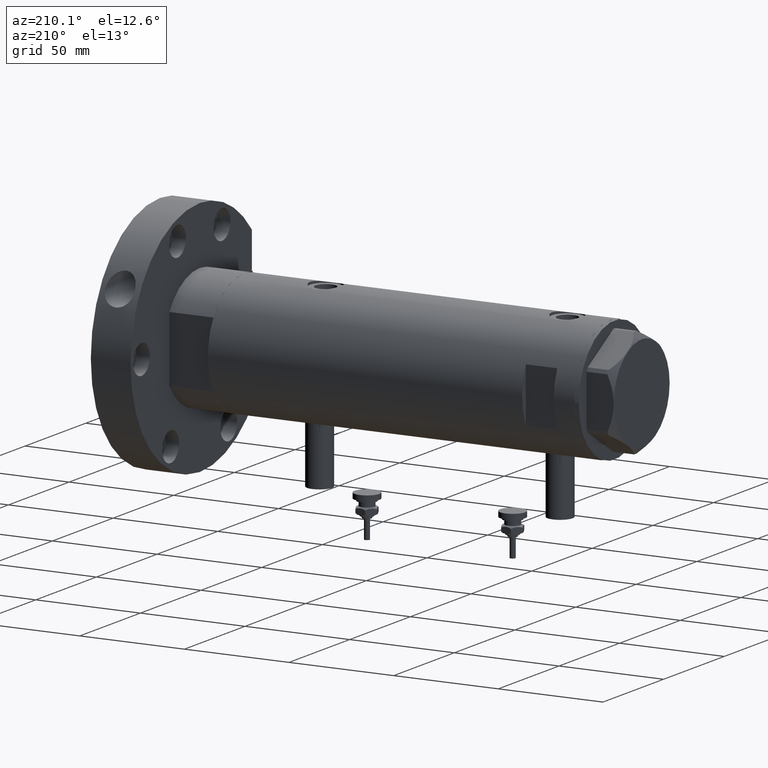
[diagram: clean part render]
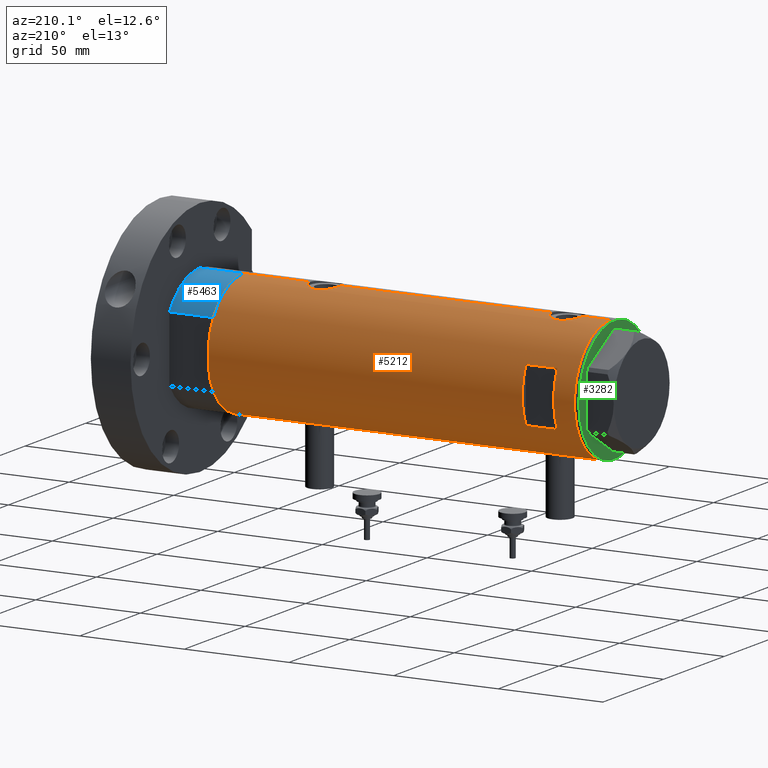
[diagram: same view with three faces highlighted in distinct colors, each labeled with its STEP entity id]
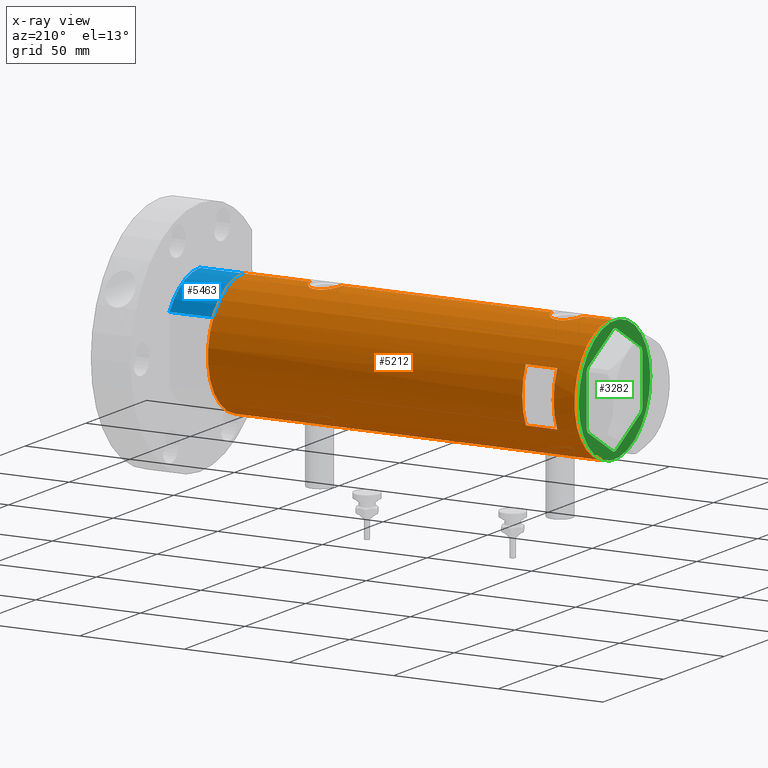
[diagram: x-ray of the same camera — body ghosted, the three highlighted faces saturated]
A machine part, auxiliary view with three faces highlighted in distinct colors.
The next image is the same camera in x-ray (body ghosted, the three faces saturated) — at least one of them is partly hidden behind the body in this view.
Their STEP definitions:

[orange] entity #5212 — the highlighted cylindrical surface (partial cylindrical patch) has radius 29.5 mm, axis along (-1, -0, 0).
#31 = LINE ( 'NONE', #6536, #6282 ) ;
#45 = EDGE_CURVE ( 'NONE', #2652, #2340, #2033, .T. ) ;
#70 = CARTESIAN_POINT ( 'NONE',  ( 12.96148139681573319, 26.49999999999998934, 77.60000000000002274 ) ) ;
#72 = CYLINDRICAL_SURFACE ( 'NONE', #5810, 29.50000000000000355 ) ;
#84 = VERTEX_POINT ( 'NONE', #70 ) ;
#100 = DIRECTION ( 'NONE',  ( 0.000000000000000000, 0.000000000000000000, 1.000000000000000000 ) ) ;
#122 = CARTESIAN_POINT ( 'NONE',  ( -28.87539346372184212, 6.038655803256923527, -49.67547335916925988 ) ) ;
#163 = CARTESIAN_POINT ( 'NONE',  ( 29.26131531204081426, 3.767377415172554311, -41.89654697428871799 ) ) ;
#166 = CARTESIAN_POINT ( 'NONE',  ( -12.96148139681574030, 26.50000000000000355, 62.60000000000001563 ) ) ;
#195 = CARTESIAN_POINT ( 'NONE',  ( 29.40387556522357571, 2.422597899785629227, -41.28513960230168323 ) ) ;
#232 = CARTESIAN_POINT ( 'NONE',  ( 29.49693976195336020, 0.4910732786937798133, -40.91200905704376112 ) ) ;
#258 = VERTEX_POINT ( 'NONE', #2034 ) ;
#271 = CARTESIAN_POINT ( 'NONE',  ( -29.33500454540941149, 3.134363790739244759, -45.87737865536319504 ) ) ;
#279 = CARTESIAN_POINT ( 'NONE',  ( 29.50000000000000355, -8.867894669064240341E-21, 74.59999999999999432 ) ) ;
#310 = ORIENTED_EDGE ( 'NONE', *, *, #7287, .F. ) ;
#316 = CARTESIAN_POINT ( 'NONE',  ( -28.99931529802529795, 5.412890550536865852, -54.43129199055216816 ) ) ;
#325 = EDGE_CURVE ( 'NONE', #4663, #3112, #1584, .T. ) ;
#352 = CARTESIAN_POINT ( 'NONE',  ( -29.38727827406290416, 2.583363936682823603, -56.99478026128668517 ) ) ;
#440 = CARTESIAN_POINT ( 'NONE',  ( -29.01875661852155019, 5.308007315944003324, -54.60588370000890279 ) ) ;
#518 = AXIS2_PLACEMENT_3D ( 'NONE', #4721, #4784, #4822 ) ;
#541 = CIRCLE ( 'NONE', #4809, 29.50000000000000355 ) ;
#566 = CARTESIAN_POINT ( 'NONE',  ( -29.48289442777306846, 1.024392307325223905, 57.43111777471300883 ) ) ;
#569 = CARTESIAN_POINT ( 'NONE',  ( 29.48742029994219038, 0.9867701249543437969, -55.85094507494218163 ) ) ;
#576 = CARTESIAN_POINT ( 'NONE',  ( 28.54350045195475971, 7.451747857568897793, 66.11733997124500206 ) ) ;
#579 = DIRECTION ( 'NONE',  ( 0.000000000000000000, 1.000000000000000000, -4.704334850106595203E-15 ) ) ;
#596 = CARTESIAN_POINT ( 'NONE',  ( -29.31451746246149881, 3.307268797680012806, 58.29285158014997137 ) ) ;
#612 = DIRECTION ( 'NONE',  ( 0.000000000000000000, 0.000000000000000000, 1.000000000000000000 ) ) ;
#644 = CARTESIAN_POINT ( 'NONE',  ( 29.43913092143246146, 1.954882548385545649, 74.35749234733351898 ) ) ;
#680 = CARTESIAN_POINT ( 'NONE',  ( 29.50000000000000355, -2.136503572369537054E-15, 59.59999999999999432 ) ) ;
#699 = CARTESIAN_POINT ( 'NONE',  ( -29.50000000000000355, -1.989795151372050188E-15, -45.04999999999999005 ) ) ;
#711 = CARTESIAN_POINT ( 'NONE',  ( 28.86328010881651451, 6.097564286278104539, 71.47368290922693745 ) ) ;
#734 = CARTESIAN_POINT ( 'NONE',  ( -28.83925158138407596, 6.209208576703542981, -52.12198382868806590 ) ) ;
#740 = CARTESIAN_POINT ( 'NONE',  ( 28.72066933684370227, 6.738715173607846332, -51.72836955953554394 ) ) ;
#776 = VECTOR ( 'NONE', #4044, 1000.000000000000000 ) ;
#780 = CARTESIAN_POINT ( 'NONE',  ( 29.31521205951408859, 3.327945423969223881, -41.66093490772912133 ) ) ;
#814 = CARTESIAN_POINT ( 'NONE',  ( 28.62953349941190240, 7.116010646391488947, -45.98020539076898672 ) ) ;
#907 = AXIS2_PLACEMENT_3D ( 'NONE', #5692, #1610, #3959 ) ;
#937 = ORIENTED_EDGE ( 'NONE', *, *, #1818, .T. ) ;
#981 = CARTESIAN_POINT ( 'NONE',  ( -29.49128627113591605, 0.8212788586050359108, 69.80923124908871102 ) ) ;
#1041 = CARTESIAN_POINT ( 'NONE',  ( 28.80468126786726302, 6.368639251981137228, 71.06860510682068366 ) ) ;
#1149 = CARTESIAN_POINT ( 'NONE',  ( 29.45150476095192360, 1.707859807438202315, 59.79292881343939570 ) ) ;
#1208 = CIRCLE ( 'NONE', #3553, 29.50000000000000355 ) ;
#1236 = EDGE_CURVE ( 'NONE', #1693, #1789, #1208, .T. ) ;
#1287 = CARTESIAN_POINT ( 'NONE',  ( 28.89369475765812112, 5.952264974793427754, 71.66950516186246034 ) ) ;
#1306 = CARTESIAN_POINT ( 'NONE',  ( -29.25454443288369433, 3.812919888526644652, -46.33102620819088457 ) ) ;
#1322 = CARTESIAN_POINT ( 'NONE',  ( -28.96085629491409819, 5.616414220648535682, 66.37199639590009781 ) ) ;
#1347 = CARTESIAN_POINT ( 'NONE',  ( 29.31463363472445849, 3.333180401682678262, -55.13656844683045222 ) ) ;
#1349 = DIRECTION ( 'NONE',  ( 0.000000000000000000, 0.000000000000000000, 1.000000000000000000 ) ) ;
#1371 = CARTESIAN_POINT ( 'NONE',  ( -29.50000000000000355, -3.685106651658548747E-16, 69.84999999999999432 ) ) ;
#1413 = LINE ( 'NONE', #7277, #1755 ) ;
#1417 = ORIENTED_EDGE ( 'NONE', *, *, #4049, .T. ) ;
#1424 = CARTESIAN_POINT ( 'NONE',  ( -29.50000000000000711, 0.4142160563134685836, -45.04999999999999716 ) ) ;
#1426 = EDGE_CURVE ( 'NONE', #5982, #6201, #1927, .T. ) ;
#1430 = CARTESIAN_POINT ( 'NONE',  ( 28.69800960089390074, 6.832546664705480666, -45.29724969708693294 ) ) ;
#1458 = ORIENTED_EDGE ( 'NONE', *, *, #1426, .F. ) ;
#1461 = CARTESIAN_POINT ( 'NONE',  ( -28.99817753551065280, 5.423057650933445828, -48.16603848537405952 ) ) ;
#1490 = ORIENTED_EDGE ( 'NONE', *, *, #5165, .T. ) ;
#1561 = CARTESIAN_POINT ( 'NONE',  ( 29.50000000000000355, -8.867894669064240341E-21, -40.89999999999999858 ) ) ;
#1573 = CARTESIAN_POINT ( 'NONE',  ( 12.96148139681573319, 26.49999999999999645, -87.59999999999999432 ) ) ;
#1584 = LINE ( 'NONE', #2749, #4640 ) ;
#1590 = CARTESIAN_POINT ( 'NONE',  ( -29.45614208737133310, 1.620034288692375535, 69.63988643911609699 ) ) ;
#1602 = ORIENTED_EDGE ( 'NONE', *, *, #3594, .F. ) ;
#1606 = CARTESIAN_POINT ( 'NONE',  ( 28.72322018454531189, 6.726124749058830510, 70.42706852850997734 ) ) ;
#1610 = DIRECTION ( 'NONE',  ( 0.000000000000000000, 0.000000000000000000, 1.000000000000000000 ) ) ;
#1617 = CARTESIAN_POINT ( 'NONE',  ( -29.31451746246149526, 3.307268797680013694, -56.60714841985004142 ) ) ;
#1628 = CARTESIAN_POINT ( 'NONE',  ( -28.83035796536222861, 6.249836767212677557, 64.01143494622724006 ) ) ;
#1648 = DIRECTION ( 'NONE',  ( -0.000000000000000000, -0.000000000000000000, -1.000000000000000000 ) ) ;
#1663 = CARTESIAN_POINT ( 'NONE',  ( -29.43341305963175003, 2.016871341298210663, 57.67025331001193678 ) ) ;
#1676 = ORIENTED_EDGE ( 'NONE', *, *, #3703, .F. ) ;
#1693 = VERTEX_POINT ( 'NONE', #1706 ) ;
#1698 = CARTESIAN_POINT ( 'NONE',  ( -29.49787850362430319, 0.4089683628077612210, 57.35998973562983849 ) ) ;
#1706 = CARTESIAN_POINT ( 'NONE',  ( 12.96148139681571898, 26.50000000000000355, 62.60000000000001563 ) ) ;
#1714 = CARTESIAN_POINT ( 'NONE',  ( 28.77473834757382321, 6.507156404236264180, 63.33837315939705093 ) ) ;
#1737 = CARTESIAN_POINT ( 'NONE',  ( -28.99931529802531927, 5.412890550536861412, 60.46870800944782331 ) ) ;
#1755 = VECTOR ( 'NONE', #4406, 1000.000000000000000 ) ;
#1789 = VERTEX_POINT ( 'NONE', #166 ) ;
#1818 = EDGE_CURVE ( 'NONE', #7356, #3269, #7219, .T. ) ;
#1831 = VERTEX_POINT ( 'NONE', #6074 ) ;
#1849 = CARTESIAN_POINT ( 'NONE',  ( 29.40387556522357571, 2.422597899785625231, 74.21486039769831677 ) ) ;
#1856 = DIRECTION ( 'NONE',  ( 0.000000000000000000, 0.000000000000000000, 1.000000000000000000 ) ) ;
#1873 = CARTESIAN_POINT ( 'NONE',  ( -28.83035796536222861, 6.249836767212684663, -50.88856505377280115 ) ) ;
#1879 = CARTESIAN_POINT ( 'NONE',  ( 29.40165444879503909, 2.418426732012822100, -55.50367056434786406 ) ) ;
#1891 = CARTESIAN_POINT ( 'NONE',  ( -28.99817753551064925, 5.423057650933436058, 66.73396151462593195 ) ) ;
#1910 = CARTESIAN_POINT ( 'NONE',  ( -28.90008889585328333, 5.919338933253951218, -49.28359792941950701 ) ) ;
#1914 = CARTESIAN_POINT ( 'NONE',  ( 28.77649569280673703, 6.494415104660911986, -44.64065011183377152 ) ) ;
#1927 = LINE ( 'NONE', #4273, #6596 ) ;
#2033 = B_SPLINE_CURVE_WITH_KNOTS ( 'NONE', 3,
 ( #5101, #2808, #3952, #1149, #5253, #7476, #2263, #4636, #3495, #3381, #5221, #6365, #6942, #6971, #4028, #1714, #4565, #4066, #2180, #6398, #5836, #576, #3607, #6253, #3340, #5688, #7438, #6867, #1606, #6299, #1041, #711, #1287, #2990, #5903, #2948, #4778, #7119, #2370, #1849, #644, #2435, #4744, #5965, #6681, #279 ),
 .UNSPECIFIED., .F., .F.,
 ( 4, 2, 2, 2, 2, 2, 2, 2, 2, 2, 2, 2, 2, 2, 2, 2, 2, 2, 2, 2, 2, 2, 4 ),
 ( 2.075019889373263572E-18, 0.001471587963626213007, 0.002207381945439318427, 0.002943175927252423846, 0.004414763890878631650, 0.005150557872691736636, 0.005886351854504842489, 0.007357939818131036848, 0.008829527781757228605, 0.009565321763570345734, 0.01030111574538346113, 0.01177270370900965375, 0.01324429167263584638, 0.01471587963626204074, 0.01545167361807513358, 0.01618746759988822989, 0.01692326158170132794, 0.01765905556351441905, 0.01913064352714058391, 0.02060223149076674184, 0.02207381945439290671, 0.02280961343620598394, 0.02354540741801906811 ),
 .UNSPECIFIED. ) ;
#2034 = CARTESIAN_POINT ( 'NONE',  ( -29.50000000000000355, 3.612708057484692393E-15, -87.59999999999999432 ) ) ;
#2035 = CARTESIAN_POINT ( 'NONE',  ( 29.38138226830144006, 2.652609128011935269, -55.41954601959671578 ) ) ;
#2081 = CARTESIAN_POINT ( 'NONE',  ( 29.50000000000000355, -8.867894669064240341E-21, 74.59999999999999432 ) ) ;
#2154 = CARTESIAN_POINT ( 'NONE',  ( 29.50000000000000355, -1.363453657738827866E-15, -55.89999999999999858 ) ) ;
#2180 = CARTESIAN_POINT ( 'NONE',  ( 28.63233008736634133, 7.102474189478613198, 64.67814868761114155 ) ) ;
#2194 = CARTESIAN_POINT ( 'NONE',  ( -29.43341305963175714, 2.016871341298211551, -57.22974668998805470 ) ) ;
#2206 = CARTESIAN_POINT ( 'NONE',  ( -29.49999999999999645, 0.2042768310961489142, 57.34999999999998010 ) ) ;
#2263 = CARTESIAN_POINT ( 'NONE',  ( 29.38138226830143651, 2.652609128011935713, 60.08045398040327001 ) ) ;
#2302 = LINE ( 'NONE', #1573, #6917 ) ;
#2309 = CARTESIAN_POINT ( 'NONE',  ( 29.50000000000000355, 0.000000000000000000, -87.59999999999999432 ) ) ;
#2332 = FACE_OUTER_BOUND ( 'NONE', #7077, .T. ) ;
#2340 = VERTEX_POINT ( 'NONE', #2081 ) ;
#2354 = CARTESIAN_POINT ( 'NONE',  ( -28.83925158138408307, 6.209208576703538540, 62.77801617131193979 ) ) ;
#2370 = CARTESIAN_POINT ( 'NONE',  ( 29.31521205951408504, 3.327945423969213223, 73.83906509227089998 ) ) ;
#2435 = CARTESIAN_POINT ( 'NONE',  ( 29.47533087885488712, 1.230190383163952239, 74.50252131767059893 ) ) ;
#2455 = CARTESIAN_POINT ( 'NONE',  ( -28.86473101544359210, 6.089252369705496548, -49.87667050833969284 ) ) ;
#2461 = CARTESIAN_POINT ( 'NONE',  ( 28.54372006395177763, 7.450900983269891142, -47.41234264364084794 ) ) ;
#2494 = CARTESIAN_POINT ( 'NONE',  ( -28.89816269917384162, 5.930588606439753718, -53.31470315542169658 ) ) ;
#2533 = CARTESIAN_POINT ( 'NONE',  ( 29.14546206473282197, 4.578181670952601756, -42.43943908396708764 ) ) ;
#2604 = CARTESIAN_POINT ( 'NONE',  ( -29.50000000000000355, 3.612708057484692393E-15, 87.59999999999999432 ) ) ;
#2621 = CARTESIAN_POINT ( 'NONE',  ( 28.59637095282950625, 7.245897747848926151, -50.35127374277608681 ) ) ;
#2625 = CARTESIAN_POINT ( 'NONE',  ( -29.50000000000000355, -3.685106651658548747E-16, 69.84999999999999432 ) ) ;
#2652 = VERTEX_POINT ( 'NONE', #680 ) ;
#2742 = CARTESIAN_POINT ( 'NONE',  ( -29.12318177724206691, 4.709191267490247412, -55.42971050241654751 ) ) ;
#2749 = CARTESIAN_POINT ( 'NONE',  ( -29.50000000000000355, 3.612708057484692393E-15, -87.59999999999999432 ) ) ;
#2787 = CARTESIAN_POINT ( 'NONE',  ( -29.37021410611214378, 2.770135525807589261, -56.90634069022830488 ) ) ;
#2808 = CARTESIAN_POINT ( 'NONE',  ( 29.50000000000000711, 0.4977435627019807241, 59.60000000000000853 ) ) ;
#2821 = CARTESIAN_POINT ( 'NONE',  ( -29.49787850362430675, 0.4089683628077651623, -57.54001026437015298 ) ) ;
#2869 = CARTESIAN_POINT ( 'NONE',  ( -29.25435602127558354, 3.814249285079249319, 58.63216270466007529 ) ) ;
#2873 = B_SPLINE_CURVE_WITH_KNOTS ( 'NONE', 3,
 ( #6963, #3484, #569, #3767, #6072, #1879, #2035, #1347, #3044, #3124, #5459, #6110, #6599, #6561, #5495, #3656, #740, #7180, #4875, #2621, #3732, #7255, #6640, #6682, #2461, #3198, #814, #1430, #4381, #1914, #3155, #4342, #3081, #7217, #6033, #3689, #2533, #163, #780, #195, #5423, #5540, #4262, #232, #5958, #7149 ),
 .UNSPECIFIED., .F., .F.,
 ( 4, 2, 2, 2, 2, 2, 2, 2, 2, 2, 2, 2, 2, 2, 2, 2, 2, 2, 2, 2, 2, 2, 4 ),
 ( 1.324216582005999085E-18, 0.001471587963626213007, 0.002207381945439318427, 0.002943175927252423846, 0.004414763890878634252, 0.005150557872691738370, 0.005886351854504841621, 0.007357939818131030776, 0.008829527781757219931, 0.009565321763570316244, 0.01030111574538341256, 0.01177270370900960171, 0.01324429167263579260, 0.01471587963626198176, 0.01545167361807507807, 0.01618746759988817091, 0.01692326158170126896, 0.01765905556351436007, 0.01913064352714053881, 0.02060223149076671756, 0.02207381945439289284, 0.02280961343620598047, 0.02354540741801906811 ),
 .UNSPECIFIED. ) ;
#2905 = CARTESIAN_POINT ( 'NONE',  ( -29.48933702067640539, 0.8192029158410146783, 57.40049277733301381 ) ) ;
#2948 = CARTESIAN_POINT ( 'NONE',  ( 29.08308069045667565, 4.954707331652127955, 72.75173628376771262 ) ) ;
#2949 = DIRECTION ( 'NONE',  ( 1.000000000000000000, 0.000000000000000000, 0.000000000000000000 ) ) ;
#2965 = VECTOR ( 'NONE', #1856, 1000.000000000000000 ) ;
#2990 = CARTESIAN_POINT ( 'NONE',  ( 28.95590528945748687, 5.641861744747097340, 72.04764911928884885 ) ) ;
#3037 = CARTESIAN_POINT ( 'NONE',  ( -28.96085629491409108, 5.616414220648541011, -48.52800360409992209 ) ) ;
#3044 = CARTESIAN_POINT ( 'NONE',  ( 29.26187100173485334, 3.763222966830669147, -54.90598258060620651 ) ) ;
#3059 = CARTESIAN_POINT ( 'NONE',  ( -12.96148139681573319, 26.49999999999999645, -87.59999999999999432 ) ) ;
#3077 = CARTESIAN_POINT ( 'NONE',  ( -28.87327190949136835, 6.049038945481238549, -52.92451728205170980 ) ) ;
#3081 = CARTESIAN_POINT ( 'NONE',  ( 28.89369475765811757, 5.952264974793427754, -43.83049483813753966 ) ) ;
#3112 = VERTEX_POINT ( 'NONE', #6855 ) ;
#3124 = CARTESIAN_POINT ( 'NONE',  ( 29.17471722935868428, 4.373569479501278501, -54.49768842409016401 ) ) ;
#3151 = CARTESIAN_POINT ( 'NONE',  ( -29.46640581083894261, 1.421634556901805402, -45.21041108910578998 ) ) ;
#3155 = CARTESIAN_POINT ( 'NONE',  ( 28.80468126786726657, 6.368639251981141669, -44.43139489317929502 ) ) ;
#3190 = CARTESIAN_POINT ( 'NONE',  ( -29.41782704931129899, 2.208494778271262948, -45.44961702072823329 ) ) ;
#3198 = CARTESIAN_POINT ( 'NONE',  ( 28.59328333056173221, 7.258376466535469085, -46.44875332515167798 ) ) ;
#3202 = CARTESIAN_POINT ( 'NONE',  ( -29.50000000000000355, 0.4142160563134685836, 69.84999999999999432 ) ) ;
#3269 = VERTEX_POINT ( 'NONE', #2604 ) ;
#3340 = CARTESIAN_POINT ( 'NONE',  ( 28.54372006395177763, 7.450900983269892031, 68.08765735635913074 ) ) ;
#3360 = DIRECTION ( 'NONE',  ( 0.000000000000000000, 0.000000000000000000, 1.000000000000000000 ) ) ;
#3366 = CARTESIAN_POINT ( 'NONE',  ( -29.37156641804199708, 2.775801885207113795, 69.21472569706632783 ) ) ;
#3381 = CARTESIAN_POINT ( 'NONE',  ( 29.17471722935868073, 4.373569479501278501, 61.00231157590981468 ) ) ;
#3395 = CARTESIAN_POINT ( 'NONE',  ( -29.33379699751449365, 3.132328395749501393, -56.71232164486110605 ) ) ;
#3478 = CARTESIAN_POINT ( 'NONE',  ( -28.96258065965881912, 5.606121065329691788, 60.82948014931239555 ) ) ;
#3484 = CARTESIAN_POINT ( 'NONE',  ( 29.50000000000000711, 0.4977435627019808351, -55.89999999999999147 ) ) ;
#3495 = CARTESIAN_POINT ( 'NONE',  ( 29.26187100173485334, 3.763222966830670480, 60.59401741939379349 ) ) ;
#3497 = CARTESIAN_POINT ( 'NONE',  ( 0.000000000000000000, 0.000000000000000000, 62.60000000000011511 ) ) ;
#3541 = ORIENTED_EDGE ( 'NONE', *, *, #45, .F. ) ;
#3553 = AXIS2_PLACEMENT_3D ( 'NONE', #3497, #5838, #579 ) ;
#3565 = DIRECTION ( 'NONE',  ( 0.000000000000000000, 0.000000000000000000, 1.000000000000000000 ) ) ;
#3594 = EDGE_CURVE ( 'NONE', #1789, #7179, #6507, .T. ) ;
#3607 = CARTESIAN_POINT ( 'NONE',  ( 28.53073993742369296, 7.499791908386148620, 66.60538051566959439 ) ) ;
#3656 = CARTESIAN_POINT ( 'NONE',  ( 28.77473834757381610, 6.507156404236260627, -52.16162684060293486 ) ) ;
#3689 = CARTESIAN_POINT ( 'NONE',  ( 29.08308069045668631, 4.954707331652121738, -42.74826371623226606 ) ) ;
#3703 = EDGE_CURVE ( 'NONE', #7179, #84, #6149, .T. ) ;
#3732 = CARTESIAN_POINT ( 'NONE',  ( 28.58083212642745607, 7.306745240314146628, -50.10953669436206326 ) ) ;
#3735 = B_SPLINE_CURVE_WITH_KNOTS ( 'NONE', 3,
 ( #2625, #3202, #981, #6114, #1590, #3936, #6280, #3366, #5543, #5712, #7160, #6573, #4385, #1891, #1322, #3771, #4965, #6724, #3817, #6160, #1628, #5854, #2354, #4591, #4662, #7568, #3478, #1737, #4623, #6959, #6386, #5275, #2869, #596, #4090, #6994, #6350, #1663, #6320, #566, #2905, #1698, #2206, #5242 ),
 .UNSPECIFIED., .F., .F.,
 ( 4, 2, 2, 2, 2, 2, 2, 2, 2, 2, 2, 2, 2, 2, 2, 2, 2, 2, 2, 2, 2, 4 ),
 ( 3.579711039243685734E-19, 0.001224749128302344029, 0.001837123692453515285, 0.002449498256604686758, 0.003674247384907013657, 0.004898996513209340556, 0.006123745641511668322, 0.007348494769813995221, 0.007960869333965159972, 0.008573243898116323855, 0.009797993026418609988, 0.01102274215472089959, 0.01224749128302318572, 0.01285986584717433920, 0.01347224041132549614, 0.01469698953962781697, 0.01592173866793014300, 0.01653411323208130515, 0.01714648779623246730, 0.01837123692453479160, 0.01898361148868595721, 0.01959598605283711936 ),
 .UNSPECIFIED. ) ;
#3761 = CARTESIAN_POINT ( 'NONE',  ( -29.43187585711095267, 2.013330896687710592, -45.37959139970892863 ) ) ;
#3767 = CARTESIAN_POINT ( 'NONE',  ( 29.45150476095192360, 1.707859807438201871, -55.70707118656059720 ) ) ;
#3771 = CARTESIAN_POINT ( 'NONE',  ( -28.91416466586725420, 5.850419487802255070, 65.80827647633630306 ) ) ;
#3817 = CARTESIAN_POINT ( 'NONE',  ( -28.86473101544358499, 6.089252369705491219, 65.02332949166031995 ) ) ;
#3936 = CARTESIAN_POINT ( 'NONE',  ( -29.43187585711094911, 2.013330896687708815, 69.52040860029104863 ) ) ;
#3952 = CARTESIAN_POINT ( 'NONE',  ( 29.48742029994219394, 0.9867701249543444630, 59.64905492505780416 ) ) ;
#3959 = DIRECTION ( 'NONE',  ( 1.000000000000000000, 0.000000000000000000, 0.000000000000000000 ) ) ;
#4028 = CARTESIAN_POINT ( 'NONE',  ( 28.89325003604224307, 5.958922200807243996, 62.51915213504485536 ) ) ;
#4044 = DIRECTION ( 'NONE',  ( 0.000000000000000000, 0.000000000000000000, 1.000000000000000000 ) ) ;
#4049 = EDGE_CURVE ( 'NONE', #258, #5037, #31, .T. ) ;
#4066 = CARTESIAN_POINT ( 'NONE',  ( 28.65280969280607692, 7.019670864411689415, 64.44786831316889675 ) ) ;
#4090 = CARTESIAN_POINT ( 'NONE',  ( -29.33379699751450431, 3.132328395749495620, 58.18767835513889253 ) ) ;
#4103 = CARTESIAN_POINT ( 'NONE',  ( 0.000000000000000000, 0.000000000000000000, -87.59999999999999432 ) ) ;
#4202 = CIRCLE ( 'NONE', #907, 29.50000000000000355 ) ;
#4225 = CARTESIAN_POINT ( 'NONE',  ( -28.83028740688047620, 6.250162243045991772, -51.70646065908373856 ) ) ;
#4257 = CARTESIAN_POINT ( 'NONE',  ( -28.96258065965880846, 5.606121065329696229, -54.07051985068762434 ) ) ;
#4262 = CARTESIAN_POINT ( 'NONE',  ( 29.48463566286631377, 0.9832945201638395583, -40.96062548237706835 ) ) ;
#4273 = CARTESIAN_POINT ( 'NONE',  ( 29.50000000000000355, 0.000000000000000000, -87.59999999999999432 ) ) ;
#4342 = CARTESIAN_POINT ( 'NONE',  ( 28.86328010881652872, 6.097564286278109869, -44.02631709077303412 ) ) ;
#4374 = CARTESIAN_POINT ( 'NONE',  ( -29.07990598238133373, 4.966177878631063081, -47.48314968353489718 ) ) ;
#4381 = CARTESIAN_POINT ( 'NONE',  ( 28.72322018454529768, 6.726124749058826957, -45.07293147149000845 ) ) ;
#4385 = CARTESIAN_POINT ( 'NONE',  ( -29.07990598238132662, 4.966177878631055087, 67.41685031646507298 ) ) ;
#4386 = B_SPLINE_CURVE_WITH_KNOTS ( 'NONE', 3,
 ( #699, #1424, #6102, #3151, #7210, #3761, #3190, #6711, #271, #1306, #4953, #7289, #4374, #1461, #3037, #5377, #1910, #122, #2455, #7143, #1873, #4225, #734, #3077, #2494, #7177, #4257, #316, #440, #7368, #2742, #6147, #6919, #1617, #3395, #2787, #352, #2194, #4538, #6226, #5111, #2821, #7416, #6881 ),
 .UNSPECIFIED., .F., .F.,
 ( 4, 2, 2, 2, 2, 2, 2, 2, 2, 2, 2, 2, 2, 2, 2, 2, 2, 2, 2, 2, 2, 4 ),
 ( 1.932886166535861628E-18, 0.001224749128302346848, 0.001837123692453517237, 0.002449498256604687625, 0.003674247384907027535, 0.004898996513209368311, 0.006123745641511708221, 0.007348494769814048130, 0.007960869333965210279, 0.008573243898116372427, 0.009797993026418693255, 0.01102274215472101582, 0.01224749128302333664, 0.01285986584717448838, 0.01347224041132563666, 0.01469698953962794014, 0.01592173866793024709, 0.01653411323208139536, 0.01714648779623254710, 0.01837123692453484017, 0.01898361148868598497, 0.01959598605283713324 ),
 .UNSPECIFIED. ) ;
#4406 = DIRECTION ( 'NONE',  ( 0.000000000000000000, 0.000000000000000000, 1.000000000000000000 ) ) ;
#4538 = CARTESIAN_POINT ( 'NONE',  ( -29.45783481716064856, 1.627188261681552284, -57.34836410908944515 ) ) ;
#4550 = EDGE_CURVE ( 'NONE', #6201, #5317, #2873, .T. ) ;
#4565 = CARTESIAN_POINT ( 'NONE',  ( 28.72066933684369516, 6.738715173607845443, 63.77163044046444185 ) ) ;
#4591 = CARTESIAN_POINT ( 'NONE',  ( -28.87327190949138256, 6.049038945481236773, 61.97548271794827457 ) ) ;
#4623 = CARTESIAN_POINT ( 'NONE',  ( -29.01875661852155019, 5.308007315944000659, 60.29411629999106736 ) ) ;
#4636 = CARTESIAN_POINT ( 'NONE',  ( 29.31463363472445849, 3.333180401682676930, 60.36343155316954068 ) ) ;
#4640 = VECTOR ( 'NONE', #3360, 1000.000000000000000 ) ;
#4662 = CARTESIAN_POINT ( 'NONE',  ( -28.89816269917384872, 5.930588606439750166, 61.58529684457829489 ) ) ;
#4663 = VERTEX_POINT ( 'NONE', #5745 ) ;
#4721 = CARTESIAN_POINT ( 'NONE',  ( 0.000000000000000000, 0.000000000000000000, 77.60000000000002274 ) ) ;
#4726 = CARTESIAN_POINT ( 'NONE',  ( -12.96148139681573319, 26.49999999999998934, 77.60000000000002274 ) ) ;
#4744 = CARTESIAN_POINT ( 'NONE',  ( 29.48463566286631377, 0.9832945201638393362, 74.53937451762291744 ) ) ;
#4778 = CARTESIAN_POINT ( 'NONE',  ( 29.14546206473281487, 4.578181670952602644, 73.06056091603291236 ) ) ;
#4784 = DIRECTION ( 'NONE',  ( -0.000000000000000000, -0.000000000000000000, -1.000000000000000000 ) ) ;
#4809 = AXIS2_PLACEMENT_3D ( 'NONE', #4815, #3565, #5868 ) ;
#4815 = CARTESIAN_POINT ( 'NONE',  ( 0.000000000000000000, 0.000000000000000000, -87.59999999999999432 ) ) ;
#4822 = DIRECTION ( 'NONE',  ( 1.000000000000000000, -1.776356839400250267E-15, 0.000000000000000000 ) ) ;
#4875 = CARTESIAN_POINT ( 'NONE',  ( 28.63233008736633778, 7.102474189478610533, -50.82185131238886555 ) ) ;
#4878 = CARTESIAN_POINT ( 'NONE',  ( -29.50000000000000355, 3.612708057484692393E-15, -87.59999999999999432 ) ) ;
#4953 = CARTESIAN_POINT ( 'NONE',  ( -29.21045586191521082, 4.133246019522343495, -46.59426098433518604 ) ) ;
#4965 = CARTESIAN_POINT ( 'NONE',  ( -28.90008889585329044, 5.919338933253946777, 65.61640207058047736 ) ) ;
#4981 = ORIENTED_EDGE ( 'NONE', *, *, #325, .T. ) ;
#5037 = VERTEX_POINT ( 'NONE', #5766 ) ;
#5039 = ORIENTED_EDGE ( 'NONE', *, *, #1236, .F. ) ;
#5101 = CARTESIAN_POINT ( 'NONE',  ( 29.50000000000000355, -2.136503572369537054E-15, 59.59999999999999432 ) ) ;
#5111 = CARTESIAN_POINT ( 'NONE',  ( -29.48933702067641249, 0.8192029158410176759, -57.49950722266699898 ) ) ;
#5152 = LINE ( 'NONE', #2309, #776 ) ;
#5165 = EDGE_CURVE ( 'NONE', #5982, #258, #541, .T. ) ;
#5212 = ADVANCED_FACE ( 'NONE', ( #5332, #2332 ), #72, .T. ) ;
#5221 = CARTESIAN_POINT ( 'NONE',  ( 29.14416130131008842, 4.572185141625602078, 61.14974588234445463 ) ) ;
#5242 = CARTESIAN_POINT ( 'NONE',  ( -29.50000000000000355, 3.612706708236066082E-15, 57.34999999999998721 ) ) ;
#5253 = CARTESIAN_POINT ( 'NONE',  ( 29.43668864566816268, 1.946133027943908855, 59.85269087298998869 ) ) ;
#5275 = CARTESIAN_POINT ( 'NONE',  ( -29.21113960567726764, 4.128622307952521275, 58.88985466616444597 ) ) ;
#5317 = VERTEX_POINT ( 'NONE', #1561 ) ;
#5332 = FACE_BOUND ( 'NONE', #6054, .T. ) ;
#5377 = CARTESIAN_POINT ( 'NONE',  ( -28.91416466586724354, 5.850419487802259511, -49.09172352366371683 ) ) ;
#5423 = CARTESIAN_POINT ( 'NONE',  ( 29.43913092143246146, 1.954882548385549423, -41.14250765266648813 ) ) ;
#5459 = CARTESIAN_POINT ( 'NONE',  ( 29.14416130131007421, 4.572185141625601190, -54.35025411765555248 ) ) ;
#5495 = CARTESIAN_POINT ( 'NONE',  ( 28.89325003604224307, 5.958922200807236891, -52.98084786495515175 ) ) ;
#5540 = CARTESIAN_POINT ( 'NONE',  ( 29.47533087885489067, 1.230190383163956458, -40.99747868232940817 ) ) ;
#5543 = CARTESIAN_POINT ( 'NONE',  ( -29.33500454540941149, 3.134363790739238542, 69.02262134463678933 ) ) ;
#5688 = CARTESIAN_POINT ( 'NONE',  ( 28.59328333056173221, 7.258376466535471749, 69.05124667484832912 ) ) ;
#5692 = CARTESIAN_POINT ( 'NONE',  ( 0.000000000000000000, 0.000000000000000000, 87.59999999999999432 ) ) ;
#5712 = CARTESIAN_POINT ( 'NONE',  ( -29.25454443288368722, 3.812919888526638879, 68.56897379180909979 ) ) ;
#5745 = CARTESIAN_POINT ( 'NONE',  ( -29.50000000000000355, -1.989795151372050188E-15, -45.04999999999999005 ) ) ;
#5766 = CARTESIAN_POINT ( 'NONE',  ( -29.50000000000000355, 3.612706708267620518E-15, -57.55000000000000426 ) ) ;
#5810 = AXIS2_PLACEMENT_3D ( 'NONE', #4103, #612, #2949 ) ;
#5836 = CARTESIAN_POINT ( 'NONE',  ( 28.58083212642745252, 7.306745240314150180, 65.39046330563792253 ) ) ;
#5838 = DIRECTION ( 'NONE',  ( 0.000000000000000000, 4.625929269271487689E-15, 1.000000000000000000 ) ) ;
#5849 = ORIENTED_EDGE ( 'NONE', *, *, #6562, .F. ) ;
#5854 = CARTESIAN_POINT ( 'NONE',  ( -28.83028740688047620, 6.250162243045986443, 63.19353934091626002 ) ) ;
#5868 = DIRECTION ( 'NONE',  ( 1.000000000000000000, 0.000000000000000000, 0.000000000000000000 ) ) ;
#5903 = CARTESIAN_POINT ( 'NONE',  ( 28.98787507734748914, 5.475789924529800956, 72.23089043376626250 ) ) ;
#5958 = CARTESIAN_POINT ( 'NONE',  ( 29.50000000000000711, 0.2453482418156837930, -40.89999999999999858 ) ) ;
#5965 = CARTESIAN_POINT ( 'NONE',  ( 29.49693976195335665, 0.4910732786937788696, 74.58799094295621046 ) ) ;
#5982 = VERTEX_POINT ( 'NONE', #6521 ) ;
#6033 = CARTESIAN_POINT ( 'NONE',  ( 28.98787507734748914, 5.475789924529796515, -43.26910956623376592 ) ) ;
#6054 = EDGE_LOOP ( 'NONE', ( #1602, #5039, #7524, #1676 ) ) ;
#6072 = CARTESIAN_POINT ( 'NONE',  ( 29.43668864566815913, 1.946133027943908633, -55.64730912700998999 ) ) ;
#6074 = CARTESIAN_POINT ( 'NONE',  ( 29.50000000000000355, 0.000000000000000000, 87.59999999999999432 ) ) ;
#6102 = CARTESIAN_POINT ( 'NONE',  ( -29.49128627113592316, 0.8212788586050391304, -45.09076875091126624 ) ) ;
#6110 = CARTESIAN_POINT ( 'NONE',  ( 29.08204711695421452, 4.951923910293528408, -54.03816021594297325 ) ) ;
#6113 = EDGE_CURVE ( 'NONE', #4663, #5037, #4386, .T. ) ;
#6114 = CARTESIAN_POINT ( 'NONE',  ( -29.46640581083894261, 1.421634556901801627, 69.68958891089418728 ) ) ;
#6147 = CARTESIAN_POINT ( 'NONE',  ( -29.21113960567726409, 4.128622307952523052, -56.01014533383550997 ) ) ;
#6149 = CIRCLE ( 'NONE', #518, 29.50000000000000355 ) ;
#6160 = CARTESIAN_POINT ( 'NONE',  ( -28.83909818927744695, 6.209925900742497618, 64.41778075451992436 ) ) ;
#6201 = VERTEX_POINT ( 'NONE', #2154 ) ;
#6226 = CARTESIAN_POINT ( 'NONE',  ( -29.48289442777307201, 1.024392307325228124, -57.46888222528699686 ) ) ;
#6253 = CARTESIAN_POINT ( 'NONE',  ( 28.53063088452983465, 7.500206755597514707, 67.58828856904807481 ) ) ;
#6280 = CARTESIAN_POINT ( 'NONE',  ( -29.41782704931130255, 2.208494778271264725, 69.45038297927175108 ) ) ;
#6282 = VECTOR ( 'NONE', #100, 1000.000000000000000 ) ;
#6299 = CARTESIAN_POINT ( 'NONE',  ( 28.77649569280672992, 6.494415104660914650, 70.85934988816623559 ) ) ;
#6320 = CARTESIAN_POINT ( 'NONE',  ( -29.45783481716065211, 1.627188261681551396, 57.55163589091055343 ) ) ;
#6350 = CARTESIAN_POINT ( 'NONE',  ( -29.38727827406289705, 2.583363936682820938, 57.90521973871332051 ) ) ;
#6365 = CARTESIAN_POINT ( 'NONE',  ( 29.08204711695421452, 4.951923910293527520, 61.46183978405700543 ) ) ;
#6386 = CARTESIAN_POINT ( 'NONE',  ( -29.12318177724206336, 4.709191267490247412, 59.47028949758345817 ) ) ;
#6398 = CARTESIAN_POINT ( 'NONE',  ( 28.59637095282950270, 7.245897747848927040, 65.14872625722391319 ) ) ;
#6507 = LINE ( 'NONE', #3059, #2965 ) ;
#6521 = CARTESIAN_POINT ( 'NONE',  ( 29.50000000000000355, 0.000000000000000000, -87.59999999999999432 ) ) ;
#6536 = CARTESIAN_POINT ( 'NONE',  ( -29.50000000000000355, 3.612708057484692393E-15, -87.59999999999999432 ) ) ;
#6561 = CARTESIAN_POINT ( 'NONE',  ( 28.95615051861771860, 5.649234316505054032, -53.35715418746725192 ) ) ;
#6562 = EDGE_CURVE ( 'NONE', #7356, #3112, #3735, .T. ) ;
#6573 = CARTESIAN_POINT ( 'NONE',  ( -29.12335997091252793, 4.707903814166463974, 67.73078007378802567 ) ) ;
#6596 = VECTOR ( 'NONE', #6610, 1000.000000000000000 ) ;
#6599 = CARTESIAN_POINT ( 'NONE',  ( 29.05056090758568388, 5.132790299589556682, -53.87391726652084145 ) ) ;
#6602 = VECTOR ( 'NONE', #1349, 1000.000000000000000 ) ;
#6610 = DIRECTION ( 'NONE',  ( 0.000000000000000000, 0.000000000000000000, 1.000000000000000000 ) ) ;
#6640 = CARTESIAN_POINT ( 'NONE',  ( 28.53073993742368586, 7.499791908386146844, -48.89461948433040561 ) ) ;
#6677 = ORIENTED_EDGE ( 'NONE', *, *, #4550, .F. ) ;
#6681 = CARTESIAN_POINT ( 'NONE',  ( 29.50000000000000355, 0.2453482418156841816, 74.59999999999999432 ) ) ;
#6682 = CARTESIAN_POINT ( 'NONE',  ( 28.53063088452982043, 7.500206755597514707, -47.91171143095193230 ) ) ;
#6711 = CARTESIAN_POINT ( 'NONE',  ( -29.37156641804198642, 2.775801885207113351, -45.68527430293367786 ) ) ;
#6724 = CARTESIAN_POINT ( 'NONE',  ( -28.87539346372185634, 6.038655803256916421, 65.22452664083074581 ) ) ;
#6755 = ORIENTED_EDGE ( 'NONE', *, *, #6113, .F. ) ;
#6855 = CARTESIAN_POINT ( 'NONE',  ( -29.50000000000000355, 3.612706708236066082E-15, 57.34999999999998721 ) ) ;
#6867 = CARTESIAN_POINT ( 'NONE',  ( 28.69800960089391140, 6.832546664705483330, 70.20275030291304574 ) ) ;
#6881 = CARTESIAN_POINT ( 'NONE',  ( -29.50000000000000355, 3.612706708267620518E-15, -57.55000000000000426 ) ) ;
#6917 = VECTOR ( 'NONE', #1648, 1000.000000000000000 ) ;
#6919 = CARTESIAN_POINT ( 'NONE',  ( -29.25435602127558354, 3.814249285079252427, -56.26783729533990908 ) ) ;
#6942 = CARTESIAN_POINT ( 'NONE',  ( 29.05056090758569098, 5.132790299589558458, 61.62608273347917276 ) ) ;
#6959 = CARTESIAN_POINT ( 'NONE',  ( -29.07940225710135351, 4.969011347753393260, 59.78730265529816990 ) ) ;
#6963 = CARTESIAN_POINT ( 'NONE',  ( 29.50000000000000355, -1.363453657738827866E-15, -55.89999999999999858 ) ) ;
#6971 = CARTESIAN_POINT ( 'NONE',  ( 28.95615051861771860, 5.649234316505054920, 62.14284581253274098 ) ) ;
#6994 = CARTESIAN_POINT ( 'NONE',  ( -29.37021410611213312, 2.770135525807581711, 57.99365930977168659 ) ) ;
#7075 = EDGE_CURVE ( 'NONE', #2340, #1831, #5152, .T. ) ;
#7077 = EDGE_LOOP ( 'NONE', ( #1490, #1417, #6755, #4981, #5849, #937, #7497, #7570, #3541, #310, #6677, #1458 ) ) ;
#7119 = CARTESIAN_POINT ( 'NONE',  ( 29.26131531204080360, 3.767377415172555644, 73.60345302571126069 ) ) ;
#7143 = CARTESIAN_POINT ( 'NONE',  ( -28.83909818927744340, 6.209925900742502058, -50.48221924548004580 ) ) ;
#7149 = CARTESIAN_POINT ( 'NONE',  ( 29.50000000000000355, -8.867894669064240341E-21, -40.89999999999999858 ) ) ;
#7160 = CARTESIAN_POINT ( 'NONE',  ( -29.21045586191520371, 4.133246019522335502, 68.30573901566479833 ) ) ;
#7177 = CARTESIAN_POINT ( 'NONE',  ( -28.94521404191311831, 5.694822755760264421, -53.88333046401345428 ) ) ;
#7179 = VERTEX_POINT ( 'NONE', #4726 ) ;
#7180 = CARTESIAN_POINT ( 'NONE',  ( 28.65280969280606982, 7.019670864411686750, -51.05213168683109615 ) ) ;
#7210 = CARTESIAN_POINT ( 'NONE',  ( -29.45614208737134732, 1.620034288692378199, -45.26011356088388737 ) ) ;
#7217 = CARTESIAN_POINT ( 'NONE',  ( 28.95590528945748687, 5.641861744747095564, -43.45235088071117246 ) ) ;
#7219 = LINE ( 'NONE', #4878, #6602 ) ;
#7255 = CARTESIAN_POINT ( 'NONE',  ( 28.54350045195475971, 7.451747857568896016, -49.38266002875501925 ) ) ;
#7277 = CARTESIAN_POINT ( 'NONE',  ( 29.50000000000000355, 0.000000000000000000, -87.59999999999999432 ) ) ;
#7287 = EDGE_CURVE ( 'NONE', #5317, #2652, #1413, .T. ) ;
#7289 = CARTESIAN_POINT ( 'NONE',  ( -29.12335997091253148, 4.707903814166472856, -47.16921992621198001 ) ) ;
#7356 = VERTEX_POINT ( 'NONE', #1371 ) ;
#7368 = CARTESIAN_POINT ( 'NONE',  ( -29.07940225710134996, 4.969011347753393260, -55.11269734470185000 ) ) ;
#7416 = CARTESIAN_POINT ( 'NONE',  ( -29.50000000000000355, 0.2042768310961517730, -57.55000000000001137 ) ) ;
#7438 = CARTESIAN_POINT ( 'NONE',  ( 28.62953349941190595, 7.116010646391488947, 69.51979460923099907 ) ) ;
#7462 = EDGE_CURVE ( 'NONE', #84, #1693, #2302, .T. ) ;
#7476 = CARTESIAN_POINT ( 'NONE',  ( 29.40165444879503909, 2.418426732012822544, 59.99632943565210041 ) ) ;
#7497 = ORIENTED_EDGE ( 'NONE', *, *, #7548, .F. ) ;
#7524 = ORIENTED_EDGE ( 'NONE', *, *, #7462, .F. ) ;
#7548 = EDGE_CURVE ( 'NONE', #1831, #3269, #4202, .T. ) ;
#7568 = CARTESIAN_POINT ( 'NONE',  ( -28.94521404191312541, 5.694822755760258204, 61.01666953598656562 ) ) ;
#7570 = ORIENTED_EDGE ( 'NONE', *, *, #7075, .F. ) ;

[blue] entity #5463 — the highlighted cylindrical surface (partial cylindrical patch) has radius 29.5 mm, axis along (-1, -0, 0).
#13 = VECTOR ( 'NONE', #5592, 1000.000000000000000 ) ;
#603 = CARTESIAN_POINT ( 'NONE',  ( 0.000000000000000000, 0.000000000000000000, 21.00000000000000000 ) ) ;
#978 = CARTESIAN_POINT ( 'NONE',  ( 0.000000000000000000, 0.000000000000000000, 21.00000000000000000 ) ) ;
#1019 = DIRECTION ( 'NONE',  ( 0.000000000000000000, 0.000000000000000000, 1.000000000000000000 ) ) ;
#1130 = ORIENTED_EDGE ( 'NONE', *, *, #5740, .F. ) ;
#1166 = ORIENTED_EDGE ( 'NONE', *, *, #5476, .T. ) ;
#1263 = AXIS2_PLACEMENT_3D ( 'NONE', #6529, #4161, #6964 ) ;
#1377 = ORIENTED_EDGE ( 'NONE', *, *, #5312, .F. ) ;
#1554 = VERTEX_POINT ( 'NONE', #6690 ) ;
#2320 = VERTEX_POINT ( 'NONE', #5123 ) ;
#2385 = EDGE_CURVE ( 'NONE', #4992, #2320, #6729, .T. ) ;
#2739 = VERTEX_POINT ( 'NONE', #4166 ) ;
#2909 = FACE_OUTER_BOUND ( 'NONE', #7392, .T. ) ;
#2977 = CYLINDRICAL_SURFACE ( 'NONE', #3707, 29.50000000000000355 ) ;
#3707 = AXIS2_PLACEMENT_3D ( 'NONE', #603, #5896, #5322 ) ;
#3828 = CIRCLE ( 'NONE', #4440, 29.50000000000000355 ) ;
#3944 = LINE ( 'NONE', #3991, #5199 ) ;
#3991 = CARTESIAN_POINT ( 'NONE',  ( -29.50000000000000355, 0.000000000000000000, 21.00000000000000000 ) ) ;
#4014 = DIRECTION ( 'NONE',  ( 1.000000000000000000, 0.000000000000000000, 0.000000000000000000 ) ) ;
#4161 = DIRECTION ( 'NONE',  ( 0.000000000000000000, 0.000000000000000000, 1.000000000000000000 ) ) ;
#4166 = CARTESIAN_POINT ( 'NONE',  ( -29.50000000000000355, 0.000000000000000000, 21.00000000000000000 ) ) ;
#4440 = AXIS2_PLACEMENT_3D ( 'NONE', #978, #1019, #4014 ) ;
#4629 = DIRECTION ( 'NONE',  ( -0.000000000000000000, -0.000000000000000000, -1.000000000000000000 ) ) ;
#4703 = CIRCLE ( 'NONE', #1263, 29.50000000000000355 ) ;
#4888 = ORIENTED_EDGE ( 'NONE', *, *, #2385, .F. ) ;
#4992 = VERTEX_POINT ( 'NONE', #6908 ) ;
#5123 = CARTESIAN_POINT ( 'NONE',  ( -15.66045976336583045, 24.99999999999999645, 21.00000000000000355 ) ) ;
#5199 = VECTOR ( 'NONE', #4629, 1000.000000000000000 ) ;
#5312 = EDGE_CURVE ( 'NONE', #2739, #1554, #3944, .T. ) ;
#5322 = DIRECTION ( 'NONE',  ( -1.000000000000000000, 0.000000000000000000, 0.000000000000000000 ) ) ;
#5463 = ADVANCED_FACE ( 'NONE', ( #2909 ), #2977, .T. ) ;
#5476 = EDGE_CURVE ( 'NONE', #4992, #1554, #4703, .T. ) ;
#5592 = DIRECTION ( 'NONE',  ( -0.000000000000000000, -0.000000000000000000, 1.000000000000000000 ) ) ;
#5674 = CARTESIAN_POINT ( 'NONE',  ( -15.66045976336583401, 25.00000000000000000, 0.000000000000000000 ) ) ;
#5740 = EDGE_CURVE ( 'NONE', #2320, #2739, #3828, .T. ) ;
#5896 = DIRECTION ( 'NONE',  ( -0.000000000000000000, -0.000000000000000000, -1.000000000000000000 ) ) ;
#6529 = CARTESIAN_POINT ( 'NONE',  ( 0.000000000000000000, 0.000000000000000000, 0.000000000000000000 ) ) ;
#6690 = CARTESIAN_POINT ( 'NONE',  ( -29.50000000000000355, 0.000000000000000000, 0.000000000000000000 ) ) ;
#6729 = LINE ( 'NONE', #5674, #13 ) ;
#6908 = CARTESIAN_POINT ( 'NONE',  ( -15.66045976336583401, 25.00000000000000000, 0.000000000000000000 ) ) ;
#6964 = DIRECTION ( 'NONE',  ( 1.000000000000000000, 0.000000000000000000, 0.000000000000000000 ) ) ;
#7392 = EDGE_LOOP ( 'NONE', ( #1377, #1130, #4888, #1166 ) ) ;

[green] entity #3282 — the highlighted planar face has unit normal (1, 0, -0).
#152 = CARTESIAN_POINT ( 'NONE',  ( -29.50000000000000355, 3.612708057484692393E-15, 0.000000000000000000 ) ) ;
#170 = DIRECTION ( 'NONE',  ( -0.8660254037844415942, 0.4999999999999949485, 0.000000000000000000 ) ) ;
#187 = CARTESIAN_POINT ( 'NONE',  ( -22.51502577388055215, -12.99905619136159629, 0.000000000000000000 ) ) ;
#243 = VERTEX_POINT ( 'NONE', #6230 ) ;
#381 = ORIENTED_EDGE ( 'NONE', *, *, #1178, .T. ) ;
#429 = LINE ( 'NONE', #6300, #1372 ) ;
#438 = ORIENTED_EDGE ( 'NONE', *, *, #3430, .F. ) ;
#465 = CARTESIAN_POINT ( 'NONE',  ( -22.99999999999990763, -12.15905619136148985, 0.000000000000000000 ) ) ;
#514 = VECTOR ( 'NONE', #170, 999.9999999999998863 ) ;
#515 = LINE ( 'NONE', #4144, #762 ) ;
#525 = EDGE_CURVE ( 'NONE', #3170, #6981, #3043, .T. ) ;
#545 = LINE ( 'NONE', #2267, #6720 ) ;
#578 = CARTESIAN_POINT ( 'NONE',  ( -22.03005154776132102, -13.83905619136147536, 0.000000000000000000 ) ) ;
#627 = VERTEX_POINT ( 'NONE', #1457 ) ;
#709 = LINE ( 'NONE', #868, #514 ) ;
#762 = VECTOR ( 'NONE', #5778, 999.9999999999998863 ) ;
#868 = CARTESIAN_POINT ( 'NONE',  ( 22.99999999999981171, 13.27905619136164184, 0.000000000000000000 ) ) ;
#905 = DIRECTION ( 'NONE',  ( 0.8660254037844345998, 0.5000000000000069944, 0.000000000000000000 ) ) ;
#957 = CARTESIAN_POINT ( 'NONE',  ( 1.859873512960652550E-13, -25.99811238272274139, 0.000000000000000000 ) ) ;
#1018 = LINE ( 'NONE', #7377, #1363 ) ;
#1178 = EDGE_CURVE ( 'NONE', #1308, #3186, #545, .T. ) ;
#1308 = VERTEX_POINT ( 'NONE', #6502 ) ;
#1363 = VECTOR ( 'NONE', #905, 999.9999999999998863 ) ;
#1372 = VECTOR ( 'NONE', #1716, 1000.000000000000000 ) ;
#1374 = FACE_BOUND ( 'NONE', #5533, .T. ) ;
#1457 = CARTESIAN_POINT ( 'NONE',  ( 0.9699484522385886098, 25.99811238272273783, 0.000000000000000000 ) ) ;
#1504 = CIRCLE ( 'NONE', #6162, 29.50000000000000355 ) ;
#1518 = CARTESIAN_POINT ( 'NONE',  ( -22.99999999999990408, -13.27905619136147841, 0.000000000000000000 ) ) ;
#1555 = DIRECTION ( 'NONE',  ( 0.8660254037844415942, -0.4999999999999950595, 0.000000000000000000 ) ) ;
#1611 = EDGE_LOOP ( 'NONE', ( #5412, #3854 ) ) ;
#1716 = DIRECTION ( 'NONE',  ( -1.032024811306395780E-14, 1.000000000000000000, 0.000000000000000000 ) ) ;
#1862 = CARTESIAN_POINT ( 'NONE',  ( 22.99999999999982236, 12.15905619136166571, 0.000000000000000000 ) ) ;
#1983 = CARTESIAN_POINT ( 'NONE',  ( 0.000000000000000000, 0.000000000000000000, 0.000000000000000000 ) ) ;
#2066 = ORIENTED_EDGE ( 'NONE', *, *, #4665, .F. ) ;
#2115 = VECTOR ( 'NONE', #3690, 1000.000000000000227 ) ;
#2141 = ORIENTED_EDGE ( 'NONE', *, *, #5569, .T. ) ;
#2211 = CARTESIAN_POINT ( 'NONE',  ( -9.299367564803055752E-14, 25.99811238272273428, 0.000000000000000000 ) ) ;
#2241 = DIRECTION ( 'NONE',  ( 0.000000000000000000, 0.000000000000000000, -1.000000000000000000 ) ) ;
#2267 = CARTESIAN_POINT ( 'NONE',  ( 22.51502577388080795, -12.99905619136115398, 0.000000000000000000 ) ) ;
#2285 = CARTESIAN_POINT ( 'NONE',  ( 22.03005154776124996, 13.83905619136162635, 0.000000000000000000 ) ) ;
#2457 = VECTOR ( 'NONE', #3920, 1000.000000000000227 ) ;
#2501 = CARTESIAN_POINT ( 'NONE',  ( 0.9699484522387533669, -25.99811238272273428, 0.000000000000000000 ) ) ;
#2515 = VERTEX_POINT ( 'NONE', #3909 ) ;
#2535 = LINE ( 'NONE', #3199, #2115 ) ;
#2561 = EDGE_CURVE ( 'NONE', #4585, #243, #4025, .T. ) ;
#2580 = VECTOR ( 'NONE', #4862, 1000.000000000000000 ) ;
#2665 = DIRECTION ( 'NONE',  ( 0.000000000000000000, 0.000000000000000000, -1.000000000000000000 ) ) ;
#2805 = EDGE_CURVE ( 'NONE', #5910, #627, #709, .T. ) ;
#2810 = DIRECTION ( 'NONE',  ( -0.4999999999999915623, -0.8660254037844434816, -0.000000000000000000 ) ) ;
#2930 = ORIENTED_EDGE ( 'NONE', *, *, #4973, .F. ) ;
#3043 = CIRCLE ( 'NONE', #4645, 29.50000000000000355 ) ;
#3058 = EDGE_CURVE ( 'NONE', #6157, #627, #4434, .T. ) ;
#3170 = VERTEX_POINT ( 'NONE', #152 ) ;
#3186 = VERTEX_POINT ( 'NONE', #6515 ) ;
#3199 = CARTESIAN_POINT ( 'NONE',  ( -22.51502577388069781, 12.99905619136134050, 0.000000000000000000 ) ) ;
#3268 = LINE ( 'NONE', #187, #2580 ) ;
#3282 = ADVANCED_FACE ( 'NONE', ( #1374, #5447 ), #4411, .F. ) ;
#3312 = EDGE_CURVE ( 'NONE', #5191, #3922, #3268, .T. ) ;
#3430 = EDGE_CURVE ( 'NONE', #6157, #7503, #4075, .T. ) ;
#3568 = VECTOR ( 'NONE', #6294, 1000.000000000000000 ) ;
#3585 = VECTOR ( 'NONE', #7270, 1000.000000000000000 ) ;
#3677 = VECTOR ( 'NONE', #7385, 1000.000000000000000 ) ;
#3690 = DIRECTION ( 'NONE',  ( 0.4999999999999986677, 0.8660254037844392627, -0.000000000000000000 ) ) ;
#3790 = EDGE_CURVE ( 'NONE', #2515, #3922, #6006, .T. ) ;
#3845 = DIRECTION ( 'NONE',  ( 0.000000000000000000, 0.000000000000000000, -1.000000000000000000 ) ) ;
#3854 = ORIENTED_EDGE ( 'NONE', *, *, #525, .F. ) ;
#3863 = LINE ( 'NONE', #1518, #4084 ) ;
#3909 = CARTESIAN_POINT ( 'NONE',  ( -22.99999999999999289, 12.15905619136131754, 0.000000000000000000 ) ) ;
#3920 = DIRECTION ( 'NONE',  ( -0.8660254037844380415, -0.5000000000000008882, 0.000000000000000000 ) ) ;
#3922 = VERTEX_POINT ( 'NONE', #465 ) ;
#4025 = LINE ( 'NONE', #957, #3568 ) ;
#4075 = LINE ( 'NONE', #6409, #2457 ) ;
#4084 = VECTOR ( 'NONE', #1555, 1000.000000000000000 ) ;
#4144 = CARTESIAN_POINT ( 'NONE',  ( 22.51502577388055926, 12.99905619136160162, 0.000000000000000000 ) ) ;
#4411 = PLANE ( 'NONE',  #4914 ) ;
#4419 = CARTESIAN_POINT ( 'NONE',  ( -0.9699484522385893870, 25.99811238272273073, 0.000000000000000000 ) ) ;
#4434 = LINE ( 'NONE', #2211, #3677 ) ;
#4585 = VERTEX_POINT ( 'NONE', #2501 ) ;
#4645 = AXIS2_PLACEMENT_3D ( 'NONE', #5309, #2241, #5850 ) ;
#4665 = EDGE_CURVE ( 'NONE', #4585, #3186, #1018, .T. ) ;
#4862 = DIRECTION ( 'NONE',  ( -0.5000000000000086597, 0.8660254037844337116, -0.000000000000000000 ) ) ;
#4910 = ORIENTED_EDGE ( 'NONE', *, *, #2561, .T. ) ;
#4914 = AXIS2_PLACEMENT_3D ( 'NONE', #1983, #3845, #6185 ) ;
#4973 = EDGE_CURVE ( 'NONE', #1308, #7242, #429, .T. ) ;
#5191 = VERTEX_POINT ( 'NONE', #578 ) ;
#5268 = ORIENTED_EDGE ( 'NONE', *, *, #6494, .F. ) ;
#5309 = CARTESIAN_POINT ( 'NONE',  ( 0.000000000000000000, 0.000000000000000000, 0.000000000000000000 ) ) ;
#5412 = ORIENTED_EDGE ( 'NONE', *, *, #6466, .F. ) ;
#5447 = FACE_OUTER_BOUND ( 'NONE', #1611, .T. ) ;
#5472 = CARTESIAN_POINT ( 'NONE',  ( -22.99999999999999645, 13.27905619136132032, 0.000000000000000000 ) ) ;
#5533 = EDGE_LOOP ( 'NONE', ( #7329, #6835, #2930, #381, #2066, #4910, #5268, #6141, #7284, #2141, #438, #6649 ) ) ;
#5569 = EDGE_CURVE ( 'NONE', #2515, #7503, #2535, .T. ) ;
#5579 = CARTESIAN_POINT ( 'NONE',  ( 29.50000000000000355, 0.000000000000000000, 0.000000000000000000 ) ) ;
#5778 = DIRECTION ( 'NONE',  ( 0.5000000000000086597, -0.8660254037844337116, -0.000000000000000000 ) ) ;
#5850 = DIRECTION ( 'NONE',  ( -1.000000000000000000, 0.000000000000000000, 0.000000000000000000 ) ) ;
#5910 = VERTEX_POINT ( 'NONE', #2285 ) ;
#6006 = LINE ( 'NONE', #5472, #3585 ) ;
#6141 = ORIENTED_EDGE ( 'NONE', *, *, #3312, .T. ) ;
#6157 = VERTEX_POINT ( 'NONE', #4419 ) ;
#6162 = AXIS2_PLACEMENT_3D ( 'NONE', #7336, #2665, #6769 ) ;
#6185 = DIRECTION ( 'NONE',  ( -1.000000000000000000, 0.000000000000000000, -0.000000000000000000 ) ) ;
#6230 = CARTESIAN_POINT ( 'NONE',  ( -0.9699484522383873264, -25.99811238272275205, 0.000000000000000000 ) ) ;
#6283 = EDGE_CURVE ( 'NONE', #5910, #7242, #515, .T. ) ;
#6294 = DIRECTION ( 'NONE',  ( -1.000000000000000000, -7.153879041605523216E-15, -0.000000000000000000 ) ) ;
#6300 = CARTESIAN_POINT ( 'NONE',  ( 23.00000000000008527, -13.27905619136115867, 0.000000000000000000 ) ) ;
#6409 = CARTESIAN_POINT ( 'NONE',  ( 0.000000000000000000, 26.55811238272274366, 0.000000000000000000 ) ) ;
#6466 = EDGE_CURVE ( 'NONE', #6981, #3170, #1504, .T. ) ;
#6494 = EDGE_CURVE ( 'NONE', #5191, #243, #3863, .T. ) ;
#6502 = CARTESIAN_POINT ( 'NONE',  ( 23.00000000000007461, -12.15905619136117721, 0.000000000000000000 ) ) ;
#6515 = CARTESIAN_POINT ( 'NONE',  ( 22.03005154776153773, -13.83905619136115561, 0.000000000000000000 ) ) ;
#6649 = ORIENTED_EDGE ( 'NONE', *, *, #3058, .T. ) ;
#6720 = VECTOR ( 'NONE', #2810, 1000.000000000000000 ) ;
#6769 = DIRECTION ( 'NONE',  ( -1.000000000000000000, 0.000000000000000000, 0.000000000000000000 ) ) ;
#6835 = ORIENTED_EDGE ( 'NONE', *, *, #6283, .T. ) ;
#6872 = CARTESIAN_POINT ( 'NONE',  ( -22.03005154776141339, 13.83905619136132792, 0.000000000000000000 ) ) ;
#6981 = VERTEX_POINT ( 'NONE', #5579 ) ;
#7242 = VERTEX_POINT ( 'NONE', #1862 ) ;
#7270 = DIRECTION ( 'NONE',  ( 3.527173405730720141E-15, -1.000000000000000000, 0.000000000000000000 ) ) ;
#7284 = ORIENTED_EDGE ( 'NONE', *, *, #3790, .F. ) ;
#7329 = ORIENTED_EDGE ( 'NONE', *, *, #2805, .F. ) ;
#7336 = CARTESIAN_POINT ( 'NONE',  ( 0.000000000000000000, 0.000000000000000000, 0.000000000000000000 ) ) ;
#7377 = CARTESIAN_POINT ( 'NONE',  ( 1.854543075583504180E-13, -26.55811238272274366, 0.000000000000000000 ) ) ;
#7385 = DIRECTION ( 'NONE',  ( 1.000000000000000000, 3.576939520802682722E-15, -0.000000000000000000 ) ) ;
#7503 = VERTEX_POINT ( 'NONE', #6872 ) ;